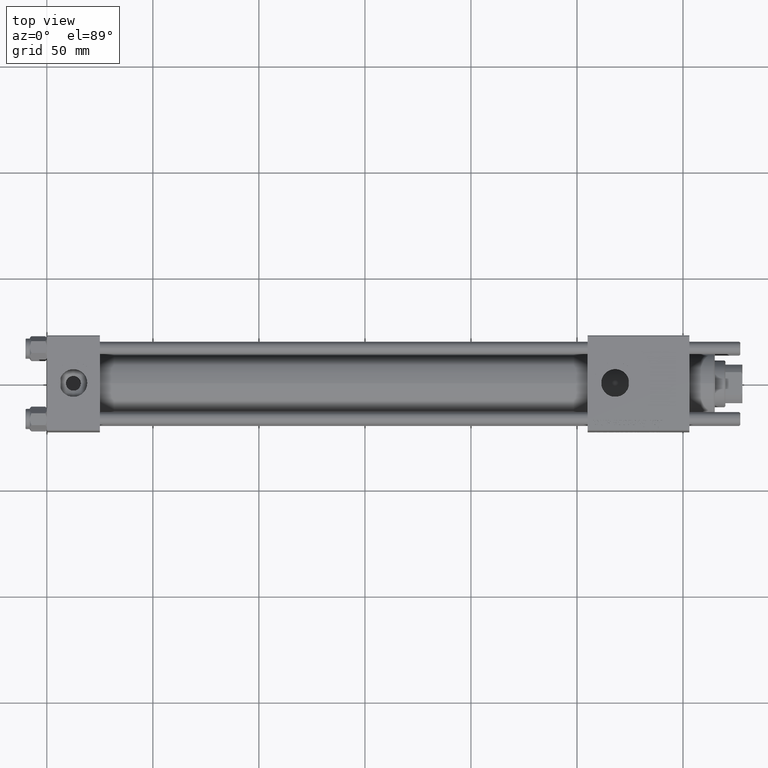
[diagram: clean part render]
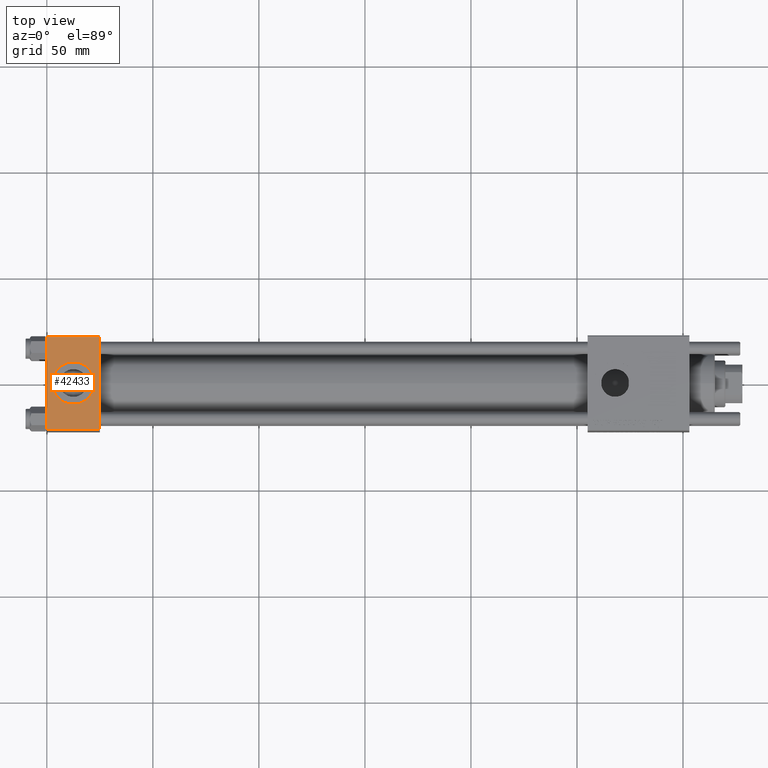
[diagram: same view with one face highlighted and labeled with its STEP entity id]
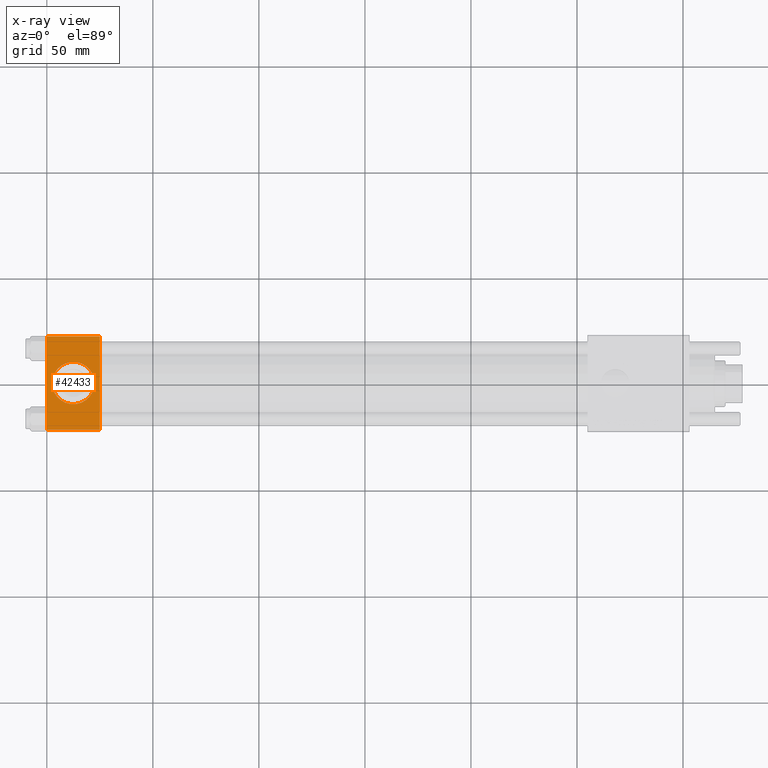
[diagram: x-ray of the same camera — body ghosted, the highlighted face saturated]
A machine part, top view. The second image highlights one B-rep face of the part: STEP entity #42433.
The next image is the same camera in x-ray: the body ghosted, the highlighted face saturated — about 0% of this face is hidden behind the body in this view.
In plain terms, the highlighted planar face has unit normal (0, 0, -1).
Its self-contained STEP definition (entity closure, byte-faithful):
#701 = DIRECTION ( 'NONE',  ( 0.000000000000000000, 1.000000000000000000, 7.709882115452476934E-17 ) ) ;
#706 = CARTESIAN_POINT ( 'NONE',  ( 25.00000000000000000, -21.99999999999997868, 22.50000000000000000 ) ) ;
#3100 = DIRECTION ( 'NONE',  ( 0.000000000000000000, -1.000000000000000000, -7.709882115452476934E-17 ) ) ;
#4028 = VERTEX_POINT ( 'NONE', #51235 ) ;
#7080 = EDGE_CURVE ( 'NONE', #47014, #10888, #52622, .T. ) ;
#7412 = AXIS2_PLACEMENT_3D ( 'NONE', #30772, #44432, #40160 ) ;
#7849 = ORIENTED_EDGE ( 'NONE', *, *, #10292, .T. ) ;
#8799 = EDGE_CURVE ( 'NONE', #34365, #23551, #32090, .T. ) ;
#9793 = DIRECTION ( 'NONE',  ( 0.000000000000000000, 7.709882115452476934E-17, -1.000000000000000000 ) ) ;
#9989 = CARTESIAN_POINT ( 'NONE',  ( 0.000000000000000000, 21.99999999999999289, 22.50000000000000355 ) ) ;
#10262 = CARTESIAN_POINT ( 'NONE',  ( 12.50000000000000000, -1.734723475976807094E-15, 22.50000000000000000 ) ) ;
#10292 = EDGE_CURVE ( 'NONE', #4028, #23551, #36986, .T. ) ;
#10888 = VERTEX_POINT ( 'NONE', #58033 ) ;
#11781 = ORIENTED_EDGE ( 'NONE', *, *, #8799, .F. ) ;
#12071 = ORIENTED_EDGE ( 'NONE', *, *, #18047, .T. ) ;
#12716 = CARTESIAN_POINT ( 'NONE',  ( 25.00000000000000000, -21.99999999999999289, 22.50000000000000000 ) ) ;
#12875 = AXIS2_PLACEMENT_3D ( 'NONE', #10262, #38778, #51847 ) ;
#13195 = ORIENTED_EDGE ( 'NONE', *, *, #23296, .F. ) ;
#14365 = PLANE ( 'NONE',  #45883 ) ;
#16504 = VECTOR ( 'NONE', #3100, 1000.000000000000000 ) ;
#16705 = ORIENTED_EDGE ( 'NONE', *, *, #7080, .F. ) ;
#18047 = EDGE_CURVE ( 'NONE', #34365, #36640, #50985, .T. ) ;
#18183 = DIRECTION ( 'NONE',  ( 1.000000000000000000, 0.000000000000000000, 0.000000000000000000 ) ) ;
#22674 = CARTESIAN_POINT ( 'NONE',  ( 25.00000000000000000, 22.50000000000000000, 22.50000000000000355 ) ) ;
#23296 = EDGE_CURVE ( 'NONE', #10888, #47014, #59784, .T. ) ;
#23551 = VERTEX_POINT ( 'NONE', #706 ) ;
#23564 = VECTOR ( 'NONE', #27540, 1000.000000000000000 ) ;
#23958 = DIRECTION ( 'NONE',  ( -1.000000000000000000, 0.000000000000000000, 0.000000000000000000 ) ) ;
#27540 = DIRECTION ( 'NONE',  ( 0.000000000000000000, -1.000000000000000000, -7.709882115452476934E-17 ) ) ;
#28314 = FACE_BOUND ( 'NONE', #41452, .T. ) ;
#28317 = ORIENTED_EDGE ( 'NONE', *, *, #29919, .T. ) ;
#29919 = EDGE_CURVE ( 'NONE', #36640, #4028, #53204, .T. ) ;
#30772 = CARTESIAN_POINT ( 'NONE',  ( 12.50000000000000000, -1.734723475976807094E-15, 22.50000000000000000 ) ) ;
#32090 = LINE ( 'NONE', #22674, #23564 ) ;
#34365 = VERTEX_POINT ( 'NONE', #44394 ) ;
#36331 = CARTESIAN_POINT ( 'NONE',  ( 0.000000000000000000, 21.99999999999999289, 22.50000000000000355 ) ) ;
#36495 = VECTOR ( 'NONE', #23958, 1000.000000000000000 ) ;
#36640 = VERTEX_POINT ( 'NONE', #36331 ) ;
#36986 = LINE ( 'NONE', #12716, #50749 ) ;
#38778 = DIRECTION ( 'NONE',  ( 0.000000000000000000, 0.000000000000000000, 1.000000000000000000 ) ) ;
#40160 = DIRECTION ( 'NONE',  ( 1.000000000000000000, 0.000000000000000000, 0.000000000000000000 ) ) ;
#41452 = EDGE_LOOP ( 'NONE', ( #13195, #16705 ) ) ;
#42433 = ADVANCED_FACE ( 'NONE', ( #28314, #55931 ), #14365, .F. ) ;
#44394 = CARTESIAN_POINT ( 'NONE',  ( 25.00000000000000000, 21.99999999999999289, 22.50000000000000355 ) ) ;
#44432 = DIRECTION ( 'NONE',  ( 0.000000000000000000, 0.000000000000000000, 1.000000000000000000 ) ) ;
#45883 = AXIS2_PLACEMENT_3D ( 'NONE', #51378, #9793, #701 ) ;
#47014 = VERTEX_POINT ( 'NONE', #47081 ) ;
#47081 = CARTESIAN_POINT ( 'NONE',  ( 2.500000000000003997, -5.100766768294543310E-16, 22.50000000000000000 ) ) ;
#50749 = VECTOR ( 'NONE', #18183, 1000.000000000000000 ) ;
#50985 = LINE ( 'NONE', #9989, #36495 ) ;
#51235 = CARTESIAN_POINT ( 'NONE',  ( 0.000000000000000000, -21.99999999999997868, 22.50000000000000000 ) ) ;
#51378 = CARTESIAN_POINT ( 'NONE',  ( 25.00000000000000000, 22.50000000000000000, 22.50000000000000355 ) ) ;
#51847 = DIRECTION ( 'NONE',  ( 1.000000000000000000, 0.000000000000000000, 0.000000000000000000 ) ) ;
#52622 = CIRCLE ( 'NONE', #12875, 9.999999999999998224 ) ;
#53204 = LINE ( 'NONE', #58328, #16504 ) ;
#55931 = FACE_OUTER_BOUND ( 'NONE', #58022, .T. ) ;
#58022 = EDGE_LOOP ( 'NONE', ( #28317, #7849, #11781, #12071 ) ) ;
#58033 = CARTESIAN_POINT ( 'NONE',  ( 22.50000000000000000, -1.734723475976807094E-15, 22.50000000000000000 ) ) ;
#58328 = CARTESIAN_POINT ( 'NONE',  ( 0.000000000000000000, 22.50000000000000000, 22.50000000000000355 ) ) ;
#59784 = CIRCLE ( 'NONE', #7412, 9.999999999999998224 ) ;